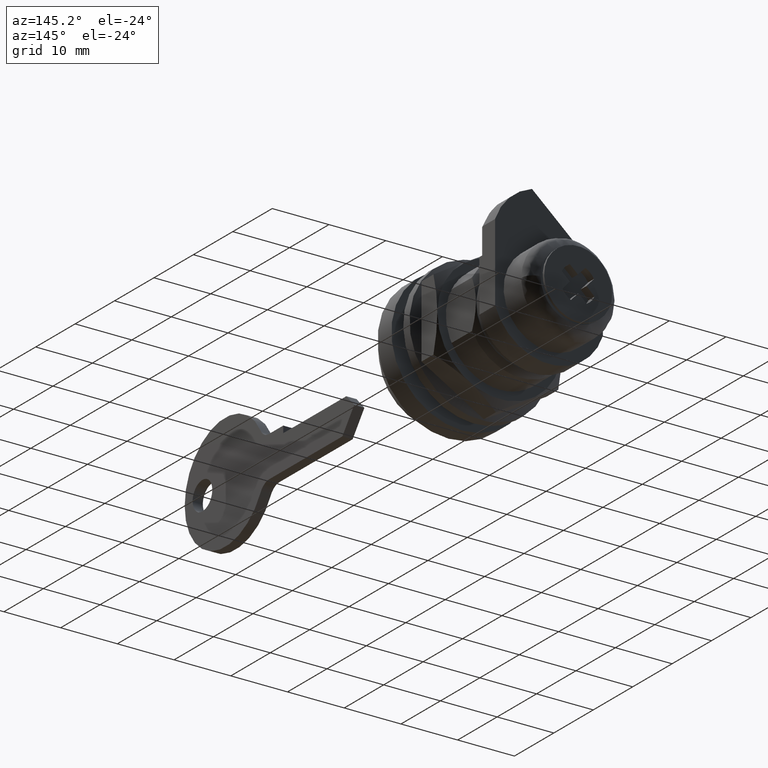
[diagram: clean part render]
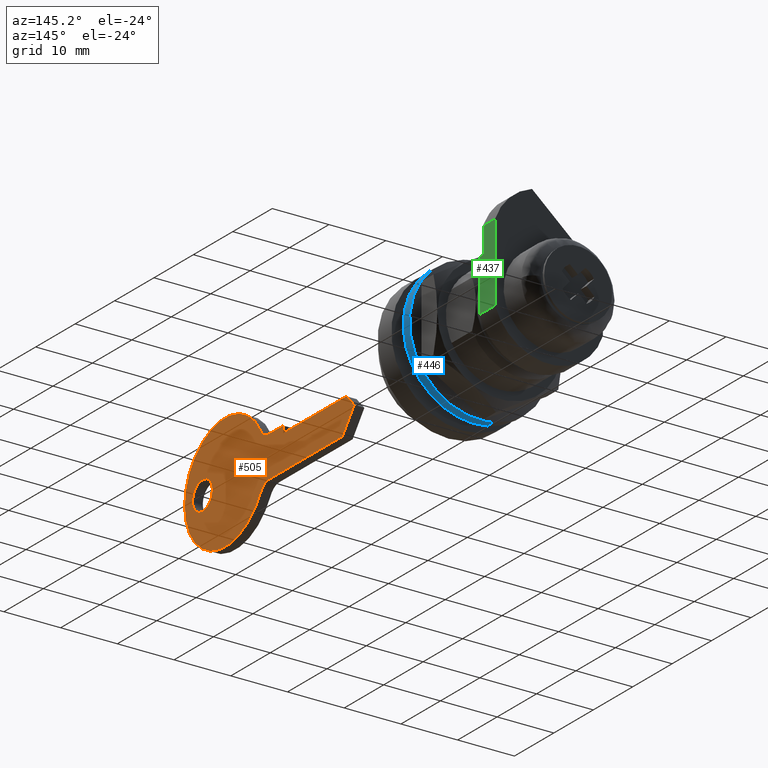
[diagram: same view with three faces highlighted in distinct colors, each labeled with its STEP entity id]
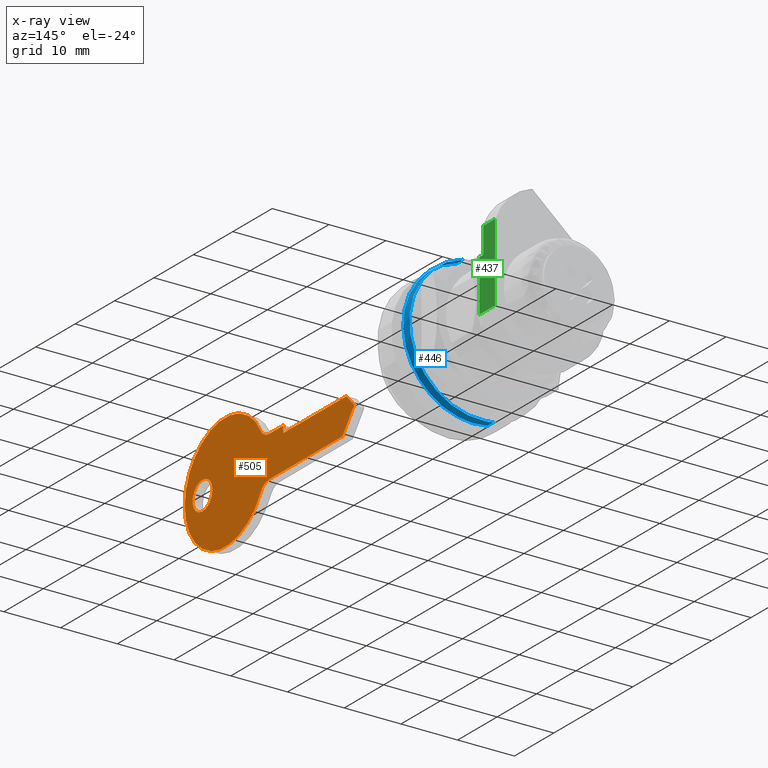
[diagram: x-ray of the same camera — body ghosted, the three highlighted faces saturated]
A machine part, auxiliary view with three faces highlighted in distinct colors.
The next image is the same camera in x-ray (body ghosted, the three faces saturated) — at least one of them is partly hidden behind the body in this view.
Their STEP definitions:

[orange] entity #505 — the highlighted planar face has unit normal (1, 0, 0).
#505=ADVANCED_FACE('',(#1878,#1879),#1877,.T.);
#1877=PLANE('',#3015);
#1878=FACE_OUTER_BOUND('',#3016,.T.);
#1879=FACE_BOUND('',#3017,.T.);
#3012=CARTESIAN_POINT('',(-9.22262266759E+01,1.89744080440E+01,-9.00000000000E-01));
#3013=DIRECTION('',(0.00000000000E+00,0.00000000000E+00,-1.00000000000E+00));
#3014=DIRECTION('',(1.00000000000E+00,0.00000000000E+00,0.00000000000E+00));
#3015=AXIS2_PLACEMENT_3D('',#3012,#3013,#3014);
#3016=EDGE_LOOP('',(#3772,#3773,#3774,#3775,#3776,#3777,#3778,#3779,#3780));
#3017=EDGE_LOOP('',(#3781,#3782,#3783));
#3772=ORIENTED_EDGE('',*,*,#4185,.F.);
#3773=ORIENTED_EDGE('',*,*,#4182,.T.);
#3774=ORIENTED_EDGE('',*,*,#4186,.T.);
#3775=ORIENTED_EDGE('',*,*,#4187,.T.);
#3776=ORIENTED_EDGE('',*,*,#4188,.T.);
#3777=ORIENTED_EDGE('',*,*,#4189,.T.);
#3778=ORIENTED_EDGE('',*,*,#4190,.T.);
#3779=ORIENTED_EDGE('',*,*,#4191,.T.);
#3780=ORIENTED_EDGE('',*,*,#4192,.T.);
#3781=ORIENTED_EDGE('',*,*,#4193,.T.);
#3782=ORIENTED_EDGE('',*,*,#4194,.T.);
#3783=ORIENTED_EDGE('',*,*,#4195,.T.);
#4182=EDGE_CURVE('',#6589,#6590,#6591,.T.);
#4185=EDGE_CURVE('',#6589,#6609,#6610,.T.);
#4186=EDGE_CURVE('',#6590,#6616,#6617,.T.);
#4187=EDGE_CURVE('',#6616,#6623,#6624,.T.);
#4188=EDGE_CURVE('',#6623,#6630,#6631,.T.);
#4189=EDGE_CURVE('',#6630,#6637,#6638,.T.);
#4190=EDGE_CURVE('',#6637,#6644,#6645,.T.);
#4191=EDGE_CURVE('',#6644,#6651,#6652,.T.);
#4192=EDGE_CURVE('',#6651,#6609,#6658,.T.);
#4193=EDGE_CURVE('',#6664,#6665,#6666,.T.);
#4194=EDGE_CURVE('',#6665,#6672,#6673,.T.);
#4195=EDGE_CURVE('',#6672,#6664,#6679,.T.);
#6589=VERTEX_POINT('',#8332);
#6590=VERTEX_POINT('',#8333);
#6591=CIRCLE('',#8337,2.50000000000E+00);
#6609=VERTEX_POINT('',#8344);
#6610=CIRCLE('',#8348,1.02500007418E+01);
#6616=VERTEX_POINT('',#8349);
#6617=LINE('',#8350,#8351);
#6623=VERTEX_POINT('',#8353);
#6624=LINE('',#8354,#8355);
#6630=VERTEX_POINT('',#8357);
#6631=LINE('',#8358,#8359);
#6637=VERTEX_POINT('',#8361);
#6638=LINE('',#8362,#8363);
#6644=VERTEX_POINT('',#8365);
#6645=LINE('',#8366,#8367);
#6651=VERTEX_POINT('',#8369);
#6652=LINE('',#8370,#8371);
#6658=CIRCLE('',#8376,2.50000000000E+00);
#6664=VERTEX_POINT('',#8377);
#6665=VERTEX_POINT('',#8378);
#6666=CIRCLE('',#8382,2.50000000015E+00);
#6672=VERTEX_POINT('',#8383);
#6673=CIRCLE('',#8387,2.50000000015E+00);
#6679=CIRCLE('',#8391,2.50000000015E+00);
#8332=CARTESIAN_POINT('',(-6.22350124188E+01,4.90392166480E+00,-9.00000000000E-01));
#8333=CARTESIAN_POINT('',(-6.00397000000E+01,3.60000000000E+00,-9.00000000000E-01));
#8334=CARTESIAN_POINT('',(-6.00397000000E+01,6.10000000000E+00,-9.00000000000E-01));
#8335=DIRECTION('',(2.44380829085E-16,1.08388842066E-16,1.00000000000E+00));
#8336=DIRECTION('',(8.78124967513E-01,4.78431334081E-01,-2.66453525910E-16));
#8337=AXIS2_PLACEMENT_3D('',#8334,#8335,#8336);
#8344=CARTESIAN_POINT('',(-6.22350124188E+01,-4.90392166480E+00,-9.00000000000E-01));
#8345=CARTESIAN_POINT('',(-7.12357939133E+01,-1.39444011893E-13,-9.00000000000E-01));
#8346=DIRECTION('',(2.11116188402E-18,-3.87487976288E-18,1.00000000000E+00));
#8347=DIRECTION('',(8.78124960307E-01,4.78431347307E-01,-5.40378942908E-34));
#8348=AXIS2_PLACEMENT_3D('',#8345,#8346,#8347);
#8349=CARTESIAN_POINT('',(-4.14858000000E+01,3.60000000000E+00,-9.00000000000E-01));
#8350=CARTESIAN_POINT('',(-6.00397000000E+01,3.60000000000E+00,-9.00000000000E-01));
#8351=VECTOR('',#8352,1.85539000000E+01);
#8352=DIRECTION('',(1.00000000000E+00,2.63285956502E-16,0.00000000000E+00));
#8353=CARTESIAN_POINT('',(-3.84858000000E+01,-3.00000000000E-01,-9.00000000000E-01));
#8354=CARTESIAN_POINT('',(-4.14858000000E+01,3.60000000000E+00,-9.00000000000E-01));
#8355=VECTOR('',#8356,4.92036584006E+00);
#8356=DIRECTION('',(6.09710760850E-01,-7.92623989105E-01,0.00000000000E+00));
#8357=CARTESIAN_POINT('',(-4.04858000000E+01,-2.40000000000E+00,-9.00000000000E-01));
#8358=CARTESIAN_POINT('',(-3.84858000000E+01,-3.00000000000E-01,-9.00000000000E-01));
#8359=VECTOR('',#8360,2.90000000000E+00);
#8360=DIRECTION('',(-6.89655172414E-01,-7.24137931034E-01,0.00000000000E+00));
#8361=CARTESIAN_POINT('',(-5.64858000000E+01,-2.40000000000E+00,-9.00000000000E-01));
#8362=CARTESIAN_POINT('',(-4.04858000000E+01,-2.40000000000E+00,-9.00000000000E-01));
#8363=VECTOR('',#8364,1.60000000000E+01);
#8364=DIRECTION('',(-1.00000000000E+00,-1.55431223448E-15,0.00000000000E+00));
#8365=CARTESIAN_POINT('',(-5.64858000000E+01,-3.60000000000E+00,-9.00000000000E-01));
#8366=CARTESIAN_POINT('',(-5.64858000000E+01,-2.40000000000E+00,-9.00000000000E-01));
#8367=VECTOR('',#8368,1.20000000000E+00);
#8368=DIRECTION('',(0.00000000000E+00,-1.00000000000E+00,0.00000000000E+00));
#8369=CARTESIAN_POINT('',(-6.00397000000E+01,-3.60000000000E+00,-9.00000000000E-01));
#8370=CARTESIAN_POINT('',(-5.64858000000E+01,-3.60000000000E+00,-9.00000000000E-01));
#8371=VECTOR('',#8372,3.55390000000E+00);
#8372=DIRECTION('',(-1.00000000000E+00,4.24858131487E-15,0.00000000000E+00));
#8373=CARTESIAN_POINT('',(-6.00397000000E+01,-6.10000000000E+00,-9.00000000000E-01));
#8374=DIRECTION('',(-2.17404976647E-17,-2.66453525910E-16,1.00000000000E+00));
#8375=DIRECTION('',(2.84217094304E-15,-1.00000000000E+00,-2.66453525910E-16));
#8376=AXIS2_PLACEMENT_3D('',#8373,#8374,#8375);
#8377=CARTESIAN_POINT('',(-7.44857999997E+01,-1.40729395041E-14,-9.00000000000E-01));
#8378=CARTESIAN_POINT('',(-7.67896522606E+01,2.49229333464E+00,-9.00000000000E-01));
#8379=CARTESIAN_POINT('',(-7.69857999998E+01,1.42978295870E-10,-9.00000000000E-01));
#8380=DIRECTION('',(-2.66453525892E-16,-3.14018491737E-17,1.00000000000E+00));
#8381=DIRECTION('',(1.00000000000E+00,-5.71968250594E-11,2.66453525890E-16));
#8382=AXIS2_PLACEMENT_3D('',#8379,#8380,#8381);
#8383=CARTESIAN_POINT('',(-7.71820684498E+01,-2.49228383127E+00,-9.00000000000E-01));
#8384=CARTESIAN_POINT('',(-7.69857999998E+01,1.42978295870E-10,-9.00000000000E-01));
#8385=DIRECTION('',(-2.66453525892E-16,-3.14018491737E-17,1.00000000000E+00));
#8386=DIRECTION('',(1.00000000000E+00,-5.71968250594E-11,2.66453525890E-16));
#8387=AXIS2_PLACEMENT_3D('',#8384,#8385,#8386);
#8388=CARTESIAN_POINT('',(-7.69857999998E+01,1.42978295870E-10,-9.00000000000E-01));
#8389=DIRECTION('',(-2.66453525892E-16,-3.14018491737E-17,1.00000000000E+00));
#8390=DIRECTION('',(1.00000000000E+00,-5.71968250594E-11,2.66453525890E-16));
#8391=AXIS2_PLACEMENT_3D('',#8388,#8389,#8390);

[blue] entity #446 — the highlighted cylindrical surface (partial cylindrical patch) has radius 12.5 mm, axis along (0, 1, -0).
#446=ADVANCED_FACE('',(#1279),#1278,.T.);
#1278=CYLINDRICAL_SURFACE('',#2505,1.25000073133E+01);
#1279=FACE_OUTER_BOUND('',#2506,.T.);
#2502=CARTESIAN_POINT('',(1.06000000000E+01,7.73388098415E-06,-6.65368307019E-06));
#2503=DIRECTION('',(1.00000000000E+00,-1.19108298678E-17,1.94742171808E-16));
#2504=DIRECTION('',(-1.54074395551E-33,9.98134833280E-01,6.10479696000E-02));
#2505=AXIS2_PLACEMENT_3D('',#2502,#2503,#2504);
#2506=EDGE_LOOP('',(#3423,#3424,#3425,#3426,#3427,#3428));
#3423=ORIENTED_EDGE('',*,*,#4007,.T.);
#3424=ORIENTED_EDGE('',*,*,#4008,.T.);
#3425=ORIENTED_EDGE('',*,*,#4006,.T.);
#3426=ORIENTED_EDGE('',*,*,#4009,.F.);
#3427=ORIENTED_EDGE('',*,*,#4010,.F.);
#3428=ORIENTED_EDGE('',*,*,#4002,.F.);
#4002=EDGE_CURVE('',#5371,#5378,#5379,.T.);
#4006=EDGE_CURVE('',#5363,#5399,#5406,.T.);
#4007=EDGE_CURVE('',#5371,#5412,#5413,.T.);
#4008=EDGE_CURVE('',#5412,#5363,#5419,.T.);
#4009=EDGE_CURVE('',#5425,#5399,#5426,.T.);
#4010=EDGE_CURVE('',#5378,#5425,#5432,.T.);
#5363=VERTEX_POINT('',#7502);
#5371=VERTEX_POINT('',#7508);
#5378=VERTEX_POINT('',#7513);
#5379=LINE('',#7514,#7515);
#5399=VERTEX_POINT('',#7527);
#5406=LINE('',#7532,#7533);
#5412=VERTEX_POINT('',#7535);
#5413=CIRCLE('',#7539,1.25000000000E+01);
#5419=CIRCLE('',#7543,1.25000000000E+01);
#5425=VERTEX_POINT('',#7544);
#5426=CIRCLE('',#7548,1.25000000000E+01);
#5432=CIRCLE('',#7552,1.25000000000E+01);
#7502=CARTESIAN_POINT('',(1.06000000000E+01,1.24126217024E+01,1.47540586681E+00));
#7508=CARTESIAN_POINT('',(1.06000000000E+01,-1.24766849803E+01,-7.63106744235E-01));
#7513=CARTESIAN_POINT('',(9.00000000000E+00,-1.24766849803E+01,-7.63106744235E-01));
#7514=CARTESIAN_POINT('',(1.06000000000E+01,-1.24766849803E+01,-7.63106744235E-01));
#7515=VECTOR('',#7516,1.60000000000E+00);
#7516=DIRECTION('',(-1.00000000000E+00,6.66133814775E-15,0.00000000000E+00));
#7527=CARTESIAN_POINT('',(9.00000000000E+00,1.24126216708E+01,1.47540613298E+00));
#7532=CARTESIAN_POINT('',(1.06000000000E+01,1.24126217024E+01,1.47540586681E+00));
#7533=VECTOR('',#7534,1.60000000000E+00);
#7534=DIRECTION('',(-1.00000000000E+00,-1.97729310702E-08,1.66352575603E-07));
#7535=CARTESIAN_POINT('',(1.06000000000E+01,-1.24813479364E+01,6.82608005168E-01));
#7536=CARTESIAN_POINT('',(1.06000000000E+01,3.75166564481E-12,2.66293653794E-11));
#7537=DIRECTION('',(-1.00000000000E+00,1.54223003427E-28,-2.55795384874E-13));
#7538=DIRECTION('',(2.55795384874E-13,3.00133251586E-13,-1.00000000000E+00));
#7539=AXIS2_PLACEMENT_3D('',#7536,#7537,#7538);
#7540=CARTESIAN_POINT('',(1.06000000000E+01,3.75166564481E-12,2.66293653794E-11));
#7541=DIRECTION('',(-1.00000000000E+00,1.54223003427E-28,-2.55795384874E-13));
#7542=DIRECTION('',(2.55795384874E-13,3.00133251586E-13,-1.00000000000E+00));
#7543=AXIS2_PLACEMENT_3D('',#7540,#7541,#7542);
#7544=CARTESIAN_POINT('',(9.00000000000E+00,-4.39522469572E+00,1.17017947288E+01));
#7545=CARTESIAN_POINT('',(9.00000000000E+00,5.32907051820E-15,6.21724893790E-15));
#7546=DIRECTION('',(-1.00000000000E+00,1.82467416862E-16,1.67227613842E-15));
#7547=DIRECTION('',(2.84217094304E-16,9.98134798422E-01,6.10485395388E-02));
#7548=AXIS2_PLACEMENT_3D('',#7545,#7546,#7547);
#7549=CARTESIAN_POINT('',(9.00000000000E+00,5.32907051820E-15,6.21724893790E-15));
#7550=DIRECTION('',(-1.00000000000E+00,1.82467416862E-16,1.67227613842E-15));
#7551=DIRECTION('',(2.84217094304E-16,9.98134798422E-01,6.10485395388E-02));
#7552=AXIS2_PLACEMENT_3D('',#7549,#7550,#7551);

[green] entity #437 — the highlighted planar face has unit normal (-1, 0, 0).
#437=ADVANCED_FACE('',(#1186),#1185,.F.);
#1185=PLANE('',#2446);
#1186=FACE_OUTER_BOUND('',#2447,.T.);
#2443=CARTESIAN_POINT('',(1.96000000000E+01,-1.19540987990E+01,-9.50000000000E+00));
#2444=DIRECTION('',(0.00000000000E+00,0.00000000000E+00,1.00000000000E+00));
#2445=DIRECTION('',(1.00000000000E+00,0.00000000000E+00,0.00000000000E+00));
#2446=AXIS2_PLACEMENT_3D('',#2443,#2444,#2445);
#2447=EDGE_LOOP('',(#3353,#3354,#3355,#3356,#3357,#3358));
#3353=ORIENTED_EDGE('',*,*,#3986,.T.);
#3354=ORIENTED_EDGE('',*,*,#3982,.T.);
#3355=ORIENTED_EDGE('',*,*,#3969,.T.);
#3356=ORIENTED_EDGE('',*,*,#3987,.T.);
#3357=ORIENTED_EDGE('',*,*,#3979,.F.);
#3358=ORIENTED_EDGE('',*,*,#3988,.F.);
#3969=EDGE_CURVE('',#5144,#5152,#5159,.T.);
#3979=EDGE_CURVE('',#5221,#5214,#5228,.T.);
#3982=EDGE_CURVE('',#5234,#5144,#5248,.T.);
#3986=EDGE_CURVE('',#5274,#5234,#5275,.T.);
#3987=EDGE_CURVE('',#5152,#5214,#5281,.T.);
#3988=EDGE_CURVE('',#5274,#5221,#5287,.T.);
#5144=VERTEX_POINT('',#7323);
#5152=VERTEX_POINT('',#7329);
#5159=LINE('',#7333,#7334);
#5214=VERTEX_POINT('',#7365);
#5221=VERTEX_POINT('',#7370);
#5228=LINE('',#7375,#7376);
#5234=VERTEX_POINT('',#7378);
#5248=LINE('',#7412,#7413);
#5274=VERTEX_POINT('',#7451);
#5275=LINE('',#7452,#7453);
#5281=LINE('',#7455,#7456);
#5287=LINE('',#7458,#7459);
#7323=CARTESIAN_POINT('',(2.10000000000E+01,-6.00000000000E+00,-9.50000000000E+00));
#7329=CARTESIAN_POINT('',(2.00000000000E+01,-6.00000000000E+00,-9.50000000000E+00));
#7333=CARTESIAN_POINT('',(2.10000000000E+01,-6.00000000000E+00,-9.50000000000E+00));
#7334=VECTOR('',#7335,1.00000000000E+00);
#7335=DIRECTION('',(-1.00000000000E+00,0.00000000000E+00,0.00000000000E+00));
#7365=CARTESIAN_POINT('',(2.00000000000E+01,3.12249899920E+00,-9.50000000000E+00));
#7370=CARTESIAN_POINT('',(2.40000000000E+01,3.12249899920E+00,-9.50000000000E+00));
#7375=CARTESIAN_POINT('',(2.40000000000E+01,3.12249899920E+00,-9.50000000000E+00));
#7376=VECTOR('',#7377,4.00000000000E+00);
#7377=DIRECTION('',(-1.00000000000E+00,0.00000000000E+00,0.00000000000E+00));
#7378=CARTESIAN_POINT('',(2.10000000000E+01,-1.05834989992E+01,-9.50000000000E+00));
#7412=CARTESIAN_POINT('',(2.10000000000E+01,-1.05834989992E+01,-9.50000000000E+00));
#7413=VECTOR('',#7414,4.58349899920E+00);
#7414=DIRECTION('',(0.00000000000E+00,1.00000000000E+00,0.00000000000E+00));
#7451=CARTESIAN_POINT('',(2.40000000000E+01,-1.05834989992E+01,-9.50000000000E+00));
#7452=CARTESIAN_POINT('',(2.40000000000E+01,-1.05834989992E+01,-9.50000000000E+00));
#7453=VECTOR('',#7454,3.00000000000E+00);
#7454=DIRECTION('',(-1.00000000000E+00,0.00000000000E+00,0.00000000000E+00));
#7455=CARTESIAN_POINT('',(2.00000000000E+01,-6.00000000000E+00,-9.50000000000E+00));
#7456=VECTOR('',#7457,9.12249899920E+00);
#7457=DIRECTION('',(0.00000000000E+00,1.00000000000E+00,0.00000000000E+00));
#7458=CARTESIAN_POINT('',(2.40000000000E+01,-1.05834989992E+01,-9.50000000000E+00));
#7459=VECTOR('',#7460,1.37059979984E+01);
#7460=DIRECTION('',(0.00000000000E+00,1.00000000000E+00,0.00000000000E+00));